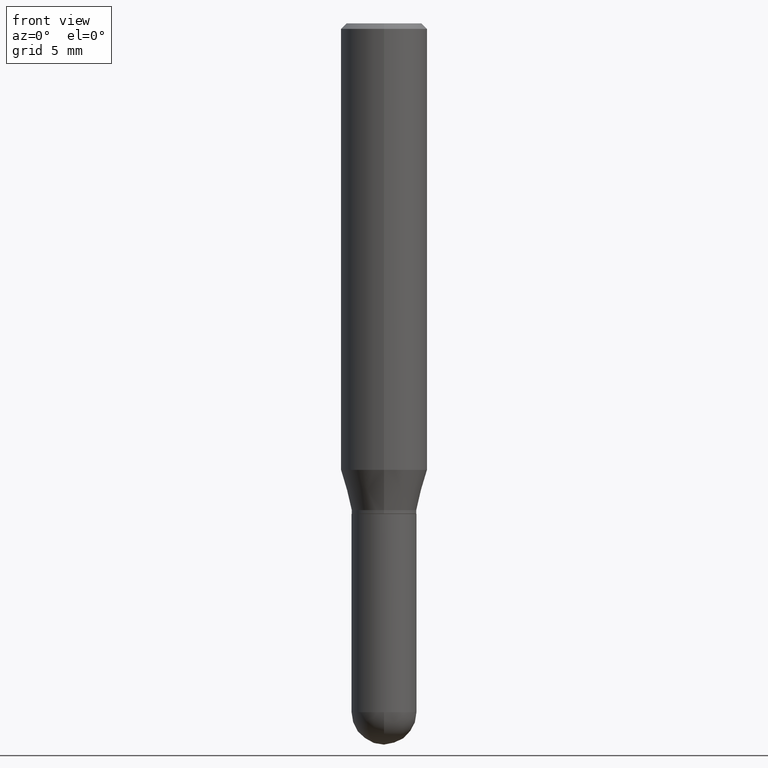
[diagram: clean part render]
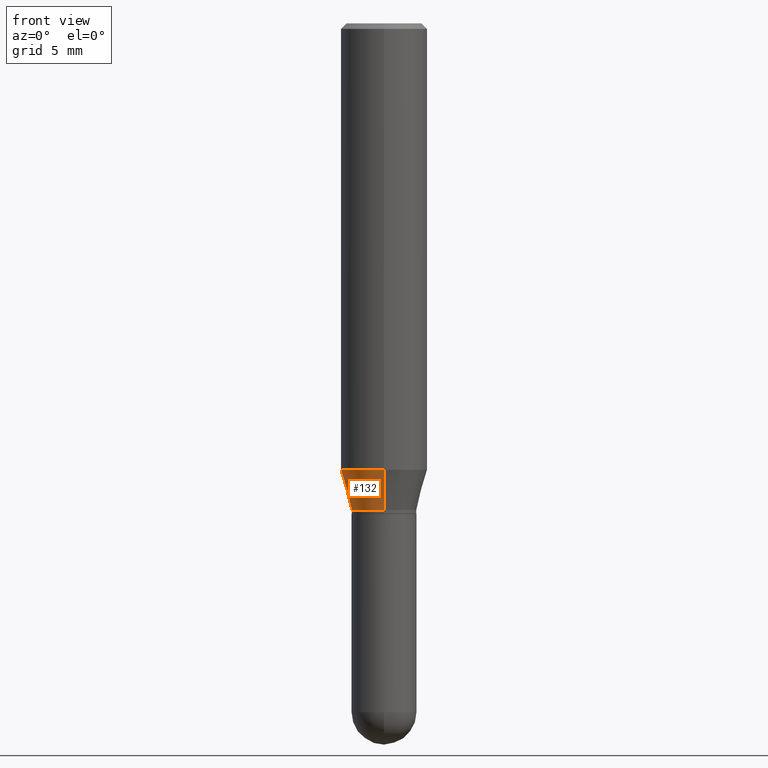
[diagram: same view with one face highlighted and labeled with its STEP entity id]
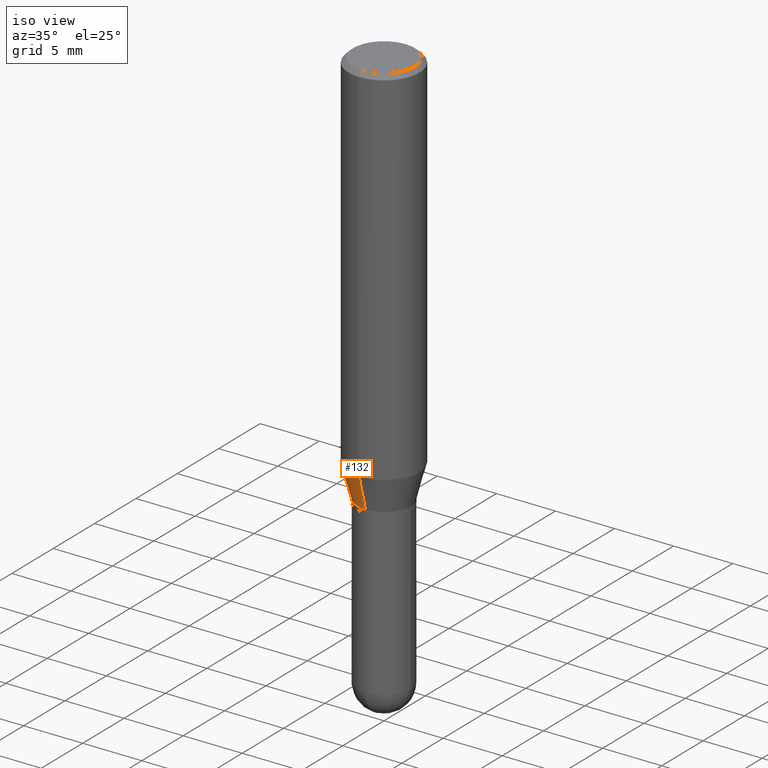
[diagram: same view with one face highlighted and labeled with its STEP entity id]
A machine part, front view. The second image highlights one B-rep face of the part: STEP entity #132.
A second angle (iso view) of the same face is appended — the face is thin or edge-on in the first view.
In plain terms, the highlighted conical surface has half-angle 15 deg.
Its self-contained STEP definition (entity closure, byte-faithful):
#7 = EDGE_CURVE ( 'NONE', #330, #364, #332, .T. ) ;
#10 = VECTOR ( 'NONE', #491, 39.37007874015748854 ) ;
#17 = CARTESIAN_POINT ( 'NONE',  ( 8.391509709327078780E-16, 0.1180999999999957362, -1.218504501176719046 ) ) ;
#33 = CARTESIAN_POINT ( 'NONE',  ( 3.249186876440983461E-29, -4.638585885570114762E-15, -1.328600000000000225 ) ) ;
#36 = CARTESIAN_POINT ( 'NONE',  ( -8.246878922347182859E-16, -0.1181000000000042710, -1.218504501176718158 ) ) ;
#46 = CIRCLE ( 'NONE', #464, 0.1180999999999999966 ) ;
#48 = LINE ( 'NONE', #315, #457 ) ;
#58 = CARTESIAN_POINT ( 'NONE',  ( 3.249186876440983461E-29, -4.638585885570114762E-15, -1.328600000000000225 ) ) ;
#74 = CIRCLE ( 'NONE', #216, 0.08859999999999991493 ) ;
#87 = EDGE_LOOP ( 'NONE', ( #201, #393, #509, #253 ) ) ;
#97 = DIRECTION ( 'NONE',  ( -6.982962677686264344E-15, -1.000000000000000000, 3.083349879982241481E-15 ) ) ;
#131 = DIRECTION ( 'NONE',  ( -2.445571937709606698E-29, 3.491333648630222721E-15, 1.000000000000000000 ) ) ;
#132 = ADVANCED_FACE ( 'NONE', ( #495 ), #378, .T. ) ;
#168 = CARTESIAN_POINT ( 'NONE',  ( -6.186904932429700179E-16, -0.08860000000000455012, -1.328599999999999781 ) ) ;
#180 = DIRECTION ( 'NONE',  ( 1.839019923739605837E-15, 0.2588190451025257355, 0.9659258262890669799 ) ) ;
#192 = DIRECTION ( 'NONE',  ( -2.445571937709606698E-29, 3.491333648630222721E-15, 1.000000000000000000 ) ) ;
#199 = DIRECTION ( 'NONE',  ( -2.445571937709606698E-29, 3.491333648630222721E-15, 1.000000000000000000 ) ) ;
#201 = ORIENTED_EDGE ( 'NONE', *, *, #411, .F. ) ;
#205 = DIRECTION ( 'NONE',  ( -6.982962677686265922E-15, -1.000000000000000000, 3.469747663417777397E-15 ) ) ;
#209 = CARTESIAN_POINT ( 'NONE',  ( 2.979940414050625783E-29, -4.254205765965662908E-15, -1.218504501176718602 ) ) ;
#216 = AXIS2_PLACEMENT_3D ( 'NONE', #58, #131, #97 ) ;
#218 = VERTEX_POINT ( 'NONE', #384 ) ;
#234 = EDGE_CURVE ( 'NONE', #445, #364, #46, .T. ) ;
#253 = ORIENTED_EDGE ( 'NONE', *, *, #234, .F. ) ;
#290 = CARTESIAN_POINT ( 'NONE',  ( -6.186904932429700179E-16, -0.08860000000000455012, -1.328599999999999781 ) ) ;
#315 = CARTESIAN_POINT ( 'NONE',  ( 6.295408638834805036E-16, 0.08859999999999526588, -1.328600000000000447 ) ) ;
#327 = AXIS2_PLACEMENT_3D ( 'NONE', #33, #192, #353 ) ;
#330 = VERTEX_POINT ( 'NONE', #168 ) ;
#332 = LINE ( 'NONE', #290, #10 ) ;
#353 = DIRECTION ( 'NONE',  ( -6.982962677686264344E-15, -1.000000000000000000, 3.083349879982241481E-15 ) ) ;
#364 = VERTEX_POINT ( 'NONE', #36 ) ;
#378 = CONICAL_SURFACE ( 'NONE', #327, 0.08859999999999991493, 0.2617993877991510732 ) ;
#384 = CARTESIAN_POINT ( 'NONE',  ( 7.343459174080941908E-16, 0.08859999999999526588, -1.328600000000000447 ) ) ;
#393 = ORIENTED_EDGE ( 'NONE', *, *, #472, .T. ) ;
#411 = EDGE_CURVE ( 'NONE', #218, #445, #48, .T. ) ;
#445 = VERTEX_POINT ( 'NONE', #17 ) ;
#457 = VECTOR ( 'NONE', #180, 39.37007874015748143 ) ;
#464 = AXIS2_PLACEMENT_3D ( 'NONE', #209, #199, #205 ) ;
#472 = EDGE_CURVE ( 'NONE', #218, #330, #74, .T. ) ;
#491 = DIRECTION ( 'NONE',  ( -1.807323732225335661E-15, -0.2588190451025189631, 0.9659258262890687563 ) ) ;
#495 = FACE_OUTER_BOUND ( 'NONE', #87, .T. ) ;
#509 = ORIENTED_EDGE ( 'NONE', *, *, #7, .T. ) ;